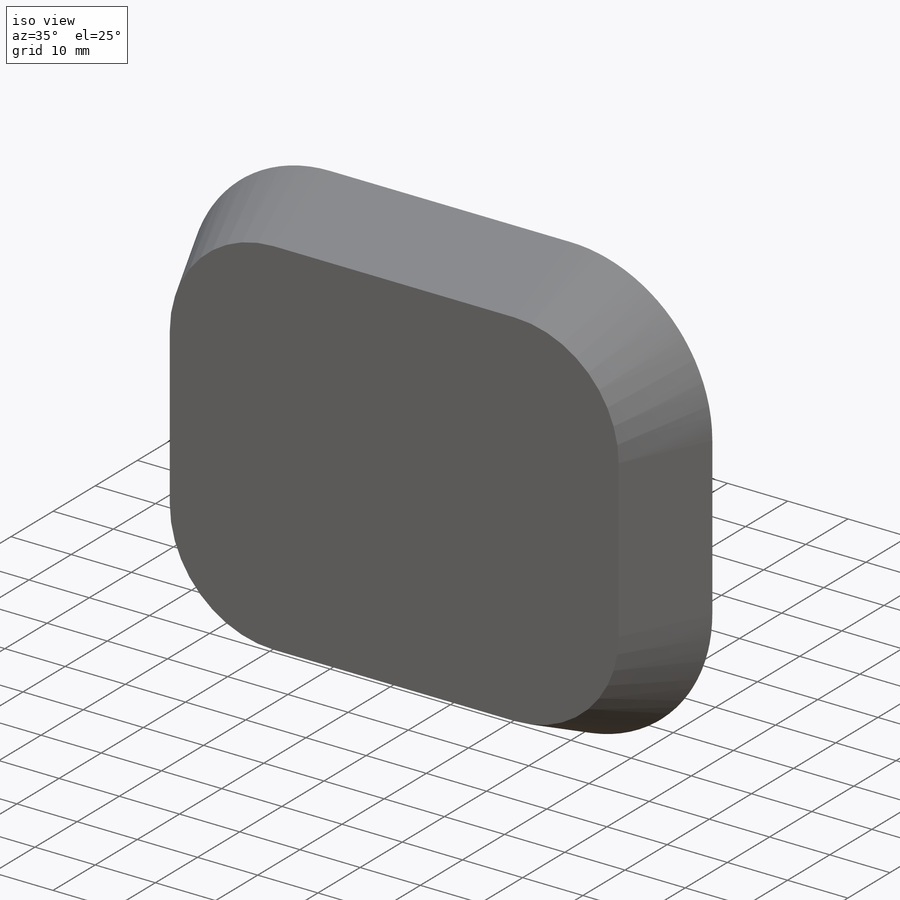
[diagram: iso view]
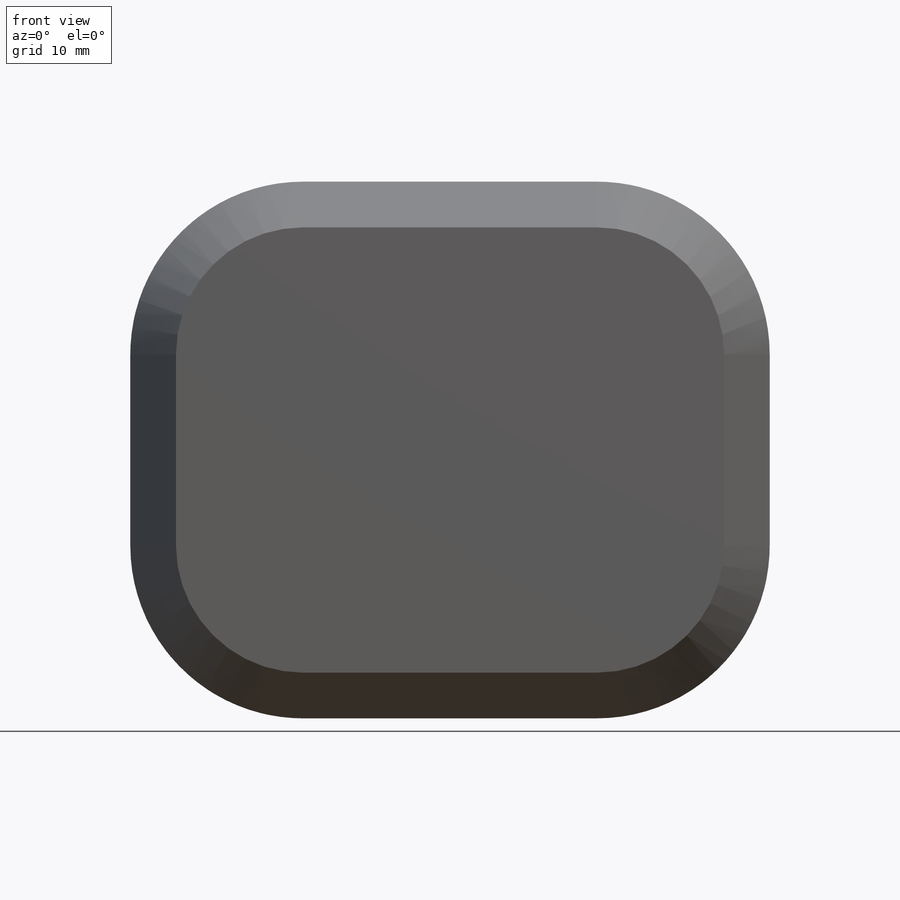
[diagram: front view]
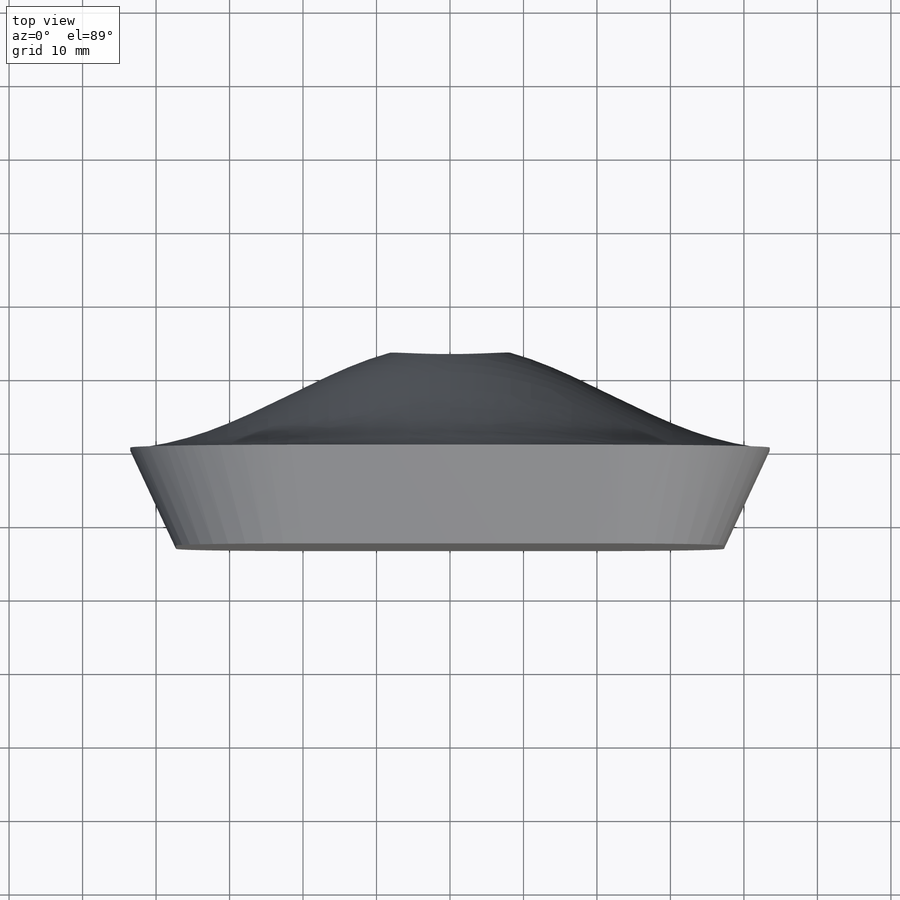
[diagram: top view]
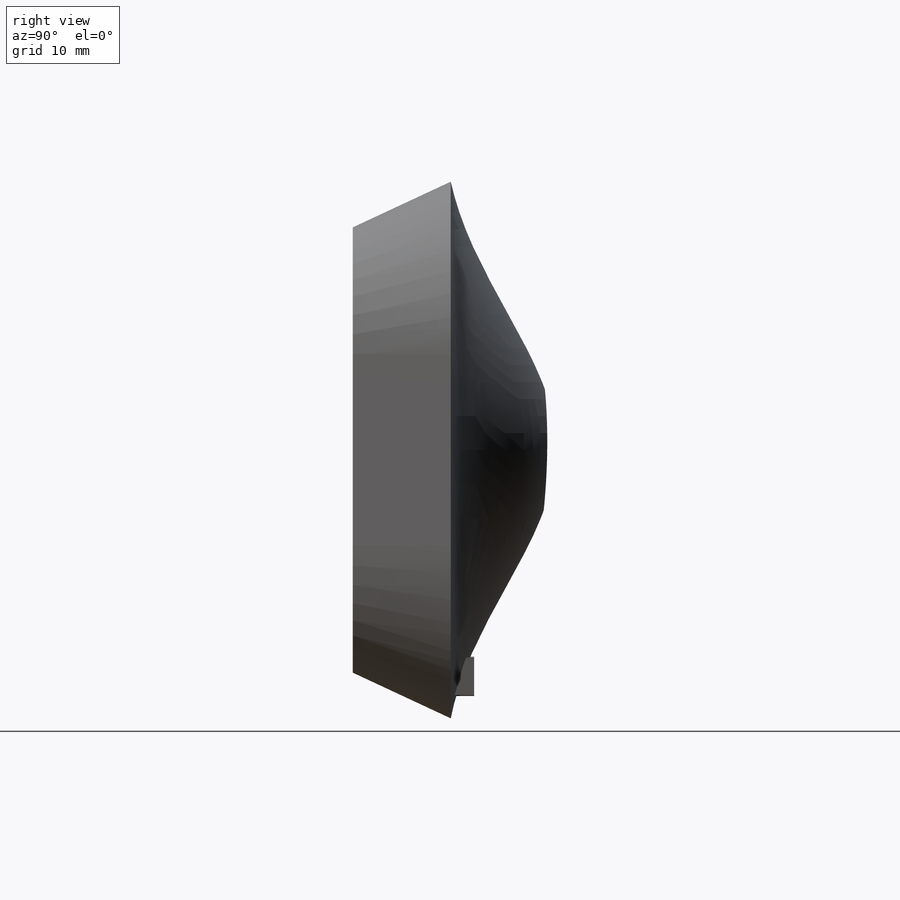
[diagram: right view]
SOLIDWORKS PART (.sldprt)
format: sldprt  version: not decoded by parser v0  size: 280,064 bytes
history: native  units: mm
features: sketch x4, extrude x3, fillet x3, material x1, dome x1, cut_extrude x1 (+11 scaffold rows collapsed)
feature tree (24):
  scaffold x11  (default folders/planes/origin — collapsed)
  material  "Material <not specified>"
  sketch  "Sketch1"  dims[D3=23.495mm D1=86.995mm D2=73.025mm]
  extrude  "Boss-Extrude1"  Depth=13.335mm
  dome  "Dome1"
  sketch  "Sketch4"  dims[D1=~8.27281mm]
  cut_extrude  "Cut-Extrude1"  [1 undecoded]
  fillet  "Fillet1"  Radius=0.79375mm
  sketch  "Sketch5"
  extrude  "Boss-Extrude2"  Depth=19.05mm
  fillet  "Fillet2"  Radius=6.35mm
  fillet  "Fillet3"  Radius=0.396875mm
  sketch  "Sketch6"  dims[D1=3.175mm D2=31.75mm]
  extrude  "Boss-Extrude3"  Depth=3.175mm
decode coverage: 9 of 12 modeling features carry decoded parameters
note: ~ marks probable driven/reference dimensions
note: 1 parameter value undecoded
note: suppression state not decoded; provenance and decode notes live in map.json
